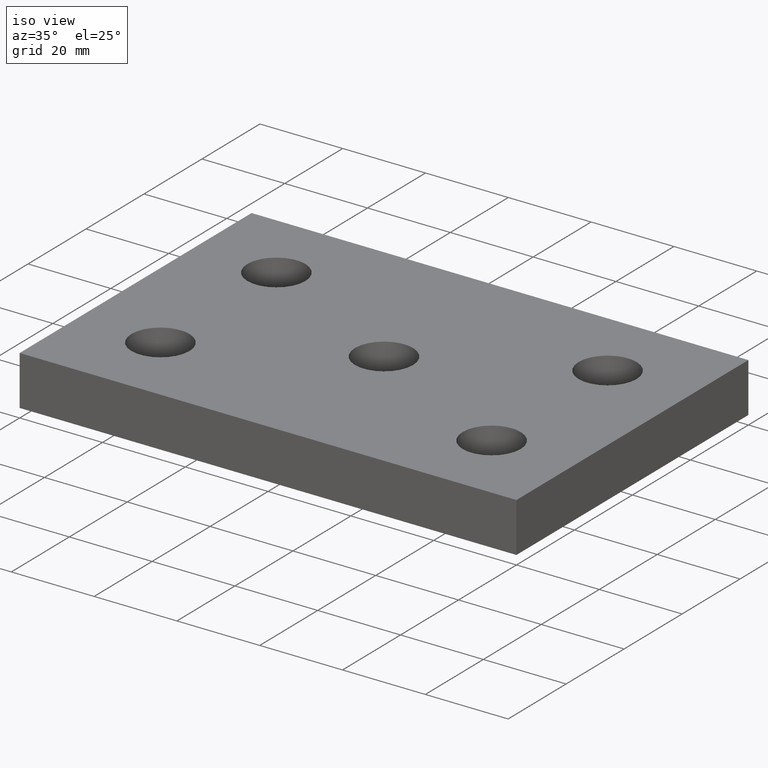
[diagram: clean part render]
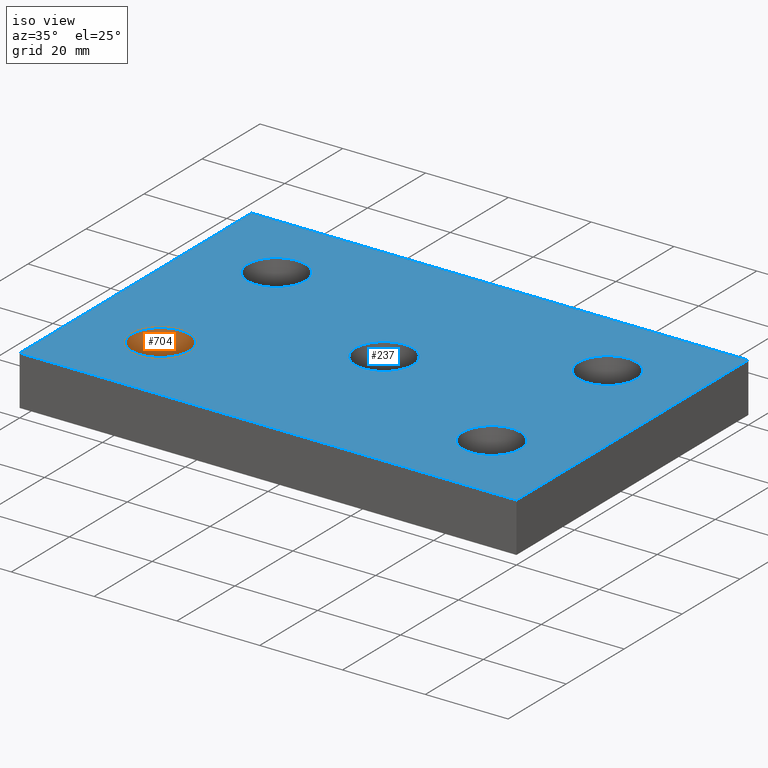
[diagram: same view with the hole feature highlighted: cylindrical wall and planar end face, labeled with their STEP entity ids]
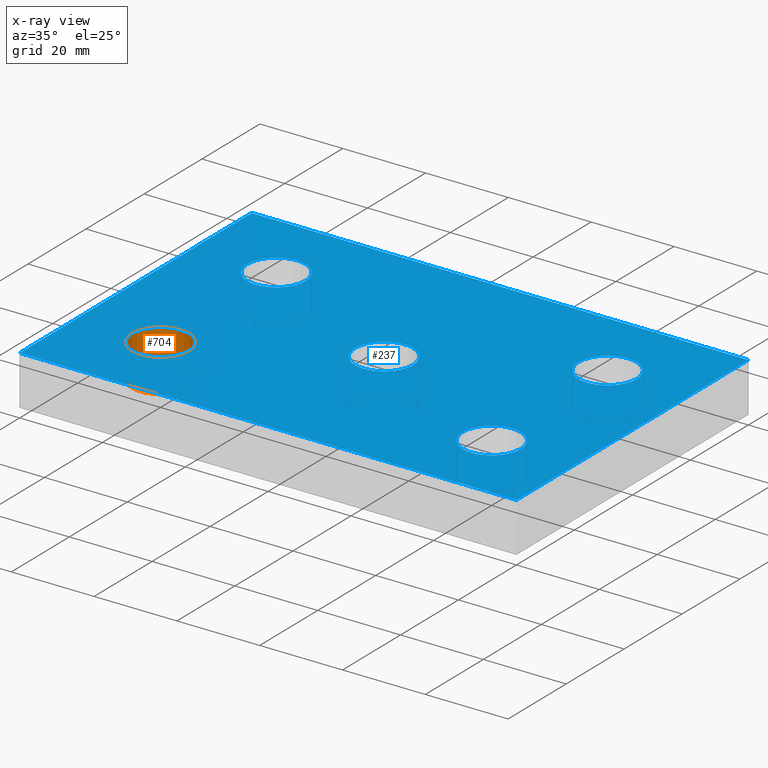
[diagram: x-ray of the same camera — body ghosted, the hole faces saturated]
A machine part, iso view. The highlighted faces form one hole feature of diameter 14 mm: the cylindrical wall (entity #704, orange) and its adjacent planar end face (entity #237, blue) — they share a circular edge in the B-rep.
The next image is the same camera in x-ray (body ghosted, the hole faces saturated) — the bore reads through the body.
Wall:
#217=CARTESIAN_POINT('',(-46.999991119840161,-19.999995559919626,12.0));
#218=VERTEX_POINT('',#217);
#219=CARTESIAN_POINT('',(-32.999991119840161,-19.999995559919626,11.999999999999998));
#220=VERTEX_POINT('',#219);
#221=CARTESIAN_POINT('',(-39.999991119840161,-19.999995559919626,12.0));
#222=DIRECTION('',(0.0,6.123234E-017,1.0));
#223=DIRECTION('',(1.0,0.0,0.0));
#224=AXIS2_PLACEMENT_3D('',#221,#222,#223);
#225=CIRCLE('',#224,7.0);
#226=EDGE_CURVE('',#218,#220,#225,.T.);
#228=CARTESIAN_POINT('',(-39.999991119840161,-19.999995559919626,12.0));
#229=DIRECTION('',(0.0,6.123234E-017,1.0));
#230=DIRECTION('',(1.0,0.0,0.0));
#231=AXIS2_PLACEMENT_3D('',#228,#229,#230);
#232=CIRCLE('',#231,7.0);
#233=EDGE_CURVE('',#220,#218,#232,.T.);
#661=CARTESIAN_POINT('',(-32.999991119840161,-19.999995559919626,4.0));
#662=VERTEX_POINT('',#661);
#663=CARTESIAN_POINT('',(-46.999991119840161,-19.999995559919626,4.0));
#664=VERTEX_POINT('',#663);
#665=CARTESIAN_POINT('',(-39.999991119840161,-19.999995559919626,4.0));
#666=DIRECTION('',(0.0,6.123234E-017,1.0));
#667=DIRECTION('',(1.0,0.0,0.0));
#668=AXIS2_PLACEMENT_3D('',#665,#666,#667);
#669=CIRCLE('',#668,7.0);
#670=EDGE_CURVE('',#662,#664,#669,.T.);
#672=CARTESIAN_POINT('',(-39.999991119840161,-19.999995559919626,4.0));
#673=DIRECTION('',(0.0,6.123234E-017,1.0));
#674=DIRECTION('',(1.0,0.0,0.0));
#675=AXIS2_PLACEMENT_3D('',#672,#673,#674);
#676=CIRCLE('',#675,7.0);
#677=EDGE_CURVE('',#664,#662,#676,.T.);
#686=CARTESIAN_POINT('',(-39.999991119840161,-19.999995559919626,4.0));
#687=DIRECTION('',(0.0,6.123234E-017,1.0));
#688=DIRECTION('',(1.0,0.0,0.0));
#689=AXIS2_PLACEMENT_3D('',#686,#687,#688);
#690=CYLINDRICAL_SURFACE('',#689,7.0);
#691=CARTESIAN_POINT('',(-32.999991119840161,-19.999995559919626,4.0));
#692=DIRECTION('',(0.0,0.0,1.0));
#693=VECTOR('',#692,7.999999999999998);
#694=LINE('',#691,#693);
#695=EDGE_CURVE('',#662,#220,#694,.T.);
#696=ORIENTED_EDGE('',*,*,#695,.T.);
#697=ORIENTED_EDGE('',*,*,#233,.T.);
#698=ORIENTED_EDGE('',*,*,#226,.T.);
#699=ORIENTED_EDGE('',*,*,#695,.F.);
#700=ORIENTED_EDGE('',*,*,#677,.F.);
#701=ORIENTED_EDGE('',*,*,#670,.F.);
#702=EDGE_LOOP('',(#696,#697,#698,#699,#700,#701));
#703=FACE_OUTER_BOUND('',#702,.T.);
#704=ADVANCED_FACE('',(#703),#690,.F.);
End face:
#7=CARTESIAN_POINT('',(59.999986679760013,-39.999991119839706,12.0));
#8=VERTEX_POINT('',#7);
#25=CARTESIAN_POINT('',(59.999986679760013,39.999991119840161,12.0));
#26=VERTEX_POINT('',#25);
#33=CARTESIAN_POINT('',(59.999986679760013,-39.999991119839706,12.0));
#34=DIRECTION('',(0.0,1.0,0.0));
#35=VECTOR('',#34,79.999982239679866);
#36=LINE('',#33,#35);
#37=EDGE_CURVE('',#8,#26,#36,.T.);
#56=CARTESIAN_POINT('',(-59.999986679760013,39.999991119840161,12.0));
#57=VERTEX_POINT('',#56);
#64=CARTESIAN_POINT('',(59.999986679760013,39.999991119840161,12.0));
#65=DIRECTION('',(-1.0,0.0,0.0));
#66=VECTOR('',#65,119.999973359520030);
#67=LINE('',#64,#66);
#68=EDGE_CURVE('',#26,#57,#67,.T.);
#87=CARTESIAN_POINT('',(-59.999986679760013,-39.999991119839706,12.0));
#88=VERTEX_POINT('',#87);
#95=CARTESIAN_POINT('',(-59.999986679760013,39.999991119840161,12.0));
#96=DIRECTION('',(0.0,-1.0,0.0));
#97=VECTOR('',#96,79.999982239679866);
#98=LINE('',#95,#97);
#99=EDGE_CURVE('',#57,#88,#98,.T.);
#117=CARTESIAN_POINT('',(-59.999986679760013,-39.999991119839706,12.0));
#118=DIRECTION('',(1.0,0.0,0.0));
#119=VECTOR('',#118,119.999973359520030);
#120=LINE('',#117,#119);
#121=EDGE_CURVE('',#88,#8,#120,.T.);
#126=CARTESIAN_POINT('',(-71.999988748835221,-47.999994076735220,12.0));
#127=DIRECTION('',(0.0,0.0,1.0));
#128=DIRECTION('',(1.0,0.0,0.0));
#129=AXIS2_PLACEMENT_3D('',#126,#127,#128);
#130=PLANE('',#129);
#131=ORIENTED_EDGE('',*,*,#37,.T.);
#132=ORIENTED_EDGE('',*,*,#68,.T.);
#133=ORIENTED_EDGE('',*,*,#99,.T.);
#134=ORIENTED_EDGE('',*,*,#121,.T.);
#135=EDGE_LOOP('',(#131,#132,#133,#134));
#136=FACE_OUTER_BOUND('',#135,.T.);
#137=CARTESIAN_POINT('',(-7.0,0.0,12.0));
#138=VERTEX_POINT('',#137);
#139=CARTESIAN_POINT('',(7.0,0.0,12.0));
#140=VERTEX_POINT('',#139);
#141=CARTESIAN_POINT('',(0.0,0.0,12.0));
#142=DIRECTION('',(0.0,0.0,1.0));
#143=DIRECTION('',(1.0,0.0,0.0));
#144=AXIS2_PLACEMENT_3D('',#141,#142,#143);
#145=CIRCLE('',#144,7.0);
#146=EDGE_CURVE('',#138,#140,#145,.T.);
#147=ORIENTED_EDGE('',*,*,#146,.F.);
#148=CARTESIAN_POINT('',(0.0,0.0,12.0));
#149=DIRECTION('',(0.0,0.0,1.0));
#150=DIRECTION('',(1.0,0.0,0.0));
#151=AXIS2_PLACEMENT_3D('',#148,#149,#150);
#152=CIRCLE('',#151,7.0);
#153=EDGE_CURVE('',#140,#138,#152,.T.);
#154=ORIENTED_EDGE('',*,*,#153,.F.);
#155=EDGE_LOOP('',(#147,#154));
#156=FACE_BOUND('',#155,.T.);
#157=CARTESIAN_POINT('',(-46.999991119840161,19.999995559920080,12.0));
#158=VERTEX_POINT('',#157);
#159=CARTESIAN_POINT('',(-32.999991119840161,19.999995559920080,11.999999999999998));
#160=VERTEX_POINT('',#159);
#161=CARTESIAN_POINT('',(-39.999991119840161,19.999995559920080,12.0));
#162=DIRECTION('',(0.0,6.123234E-017,1.0));
#163=DIRECTION('',(1.0,0.0,0.0));
#164=AXIS2_PLACEMENT_3D('',#161,#162,#163);
#165=CIRCLE('',#164,7.0);
#166=EDGE_CURVE('',#158,#160,#165,.T.);
#167=ORIENTED_EDGE('',*,*,#166,.F.);
#168=CARTESIAN_POINT('',(-39.999991119840161,19.999995559920080,12.0));
#169=DIRECTION('',(0.0,6.123234E-017,1.0));
#170=DIRECTION('',(1.0,0.0,0.0));
#171=AXIS2_PLACEMENT_3D('',#168,#169,#170);
#172=CIRCLE('',#171,7.0);
#173=EDGE_CURVE('',#160,#158,#172,.T.);
#174=ORIENTED_EDGE('',*,*,#173,.F.);
#175=EDGE_LOOP('',(#167,#174));
#176=FACE_BOUND('',#175,.T.);
#177=CARTESIAN_POINT('',(32.999991119839933,19.999995559920080,12.0));
#178=VERTEX_POINT('',#177);
#179=CARTESIAN_POINT('',(46.999991119839933,19.999995559920080,11.999999999999998));
#180=VERTEX_POINT('',#179);
#181=CARTESIAN_POINT('',(39.999991119839933,19.999995559920080,12.0));
#182=DIRECTION('',(0.0,6.123234E-017,1.0));
#183=DIRECTION('',(1.0,0.0,0.0));
#184=AXIS2_PLACEMENT_3D('',#181,#182,#183);
#185=CIRCLE('',#184,7.0);
#186=EDGE_CURVE('',#178,#180,#185,.T.);
#187=ORIENTED_EDGE('',*,*,#186,.F.);
#188=CARTESIAN_POINT('',(39.999991119839933,19.999995559920080,12.0));
#189=DIRECTION('',(0.0,6.123234E-017,1.0));
#190=DIRECTION('',(1.0,0.0,0.0));
#191=AXIS2_PLACEMENT_3D('',#188,#189,#190);
#192=CIRCLE('',#191,7.0);
#193=EDGE_CURVE('',#180,#178,#192,.T.);
#194=ORIENTED_EDGE('',*,*,#193,.F.);
#195=EDGE_LOOP('',(#187,#194));
#196=FACE_BOUND('',#195,.T.);
#197=CARTESIAN_POINT('',(32.999991119839933,-19.999995559919626,12.0));
#198=VERTEX_POINT('',#197);
#199=CARTESIAN_POINT('',(46.999991119839933,-19.999995559919626,11.999999999999998));
#200=VERTEX_POINT('',#199);
#201=CARTESIAN_POINT('',(39.999991119839933,-19.999995559919626,12.0));
#202=DIRECTION('',(0.0,6.123234E-017,1.0));
#203=DIRECTION('',(1.0,0.0,0.0));
#204=AXIS2_PLACEMENT_3D('',#201,#202,#203);
#205=CIRCLE('',#204,7.0);
#206=EDGE_CURVE('',#198,#200,#205,.T.);
#207=ORIENTED_EDGE('',*,*,#206,.F.);
#208=CARTESIAN_POINT('',(39.999991119839933,-19.999995559919626,12.0));
#209=DIRECTION('',(0.0,6.123234E-017,1.0));
#210=DIRECTION('',(1.0,0.0,0.0));
#211=AXIS2_PLACEMENT_3D('',#208,#209,#210);
#212=CIRCLE('',#211,7.0);
#213=EDGE_CURVE('',#200,#198,#212,.T.);
#214=ORIENTED_EDGE('',*,*,#213,.F.);
#215=EDGE_LOOP('',(#207,#214));
#216=FACE_BOUND('',#215,.T.);
#217=CARTESIAN_POINT('',(-46.999991119840161,-19.999995559919626,12.0));
#218=VERTEX_POINT('',#217);
#219=CARTESIAN_POINT('',(-32.999991119840161,-19.999995559919626,11.999999999999998));
#220=VERTEX_POINT('',#219);
#221=CARTESIAN_POINT('',(-39.999991119840161,-19.999995559919626,12.0));
#222=DIRECTION('',(0.0,6.123234E-017,1.0));
#223=DIRECTION('',(1.0,0.0,0.0));
#224=AXIS2_PLACEMENT_3D('',#221,#222,#223);
#225=CIRCLE('',#224,7.0);
#226=EDGE_CURVE('',#218,#220,#225,.T.);
#227=ORIENTED_EDGE('',*,*,#226,.F.);
#228=CARTESIAN_POINT('',(-39.999991119840161,-19.999995559919626,12.0));
#229=DIRECTION('',(0.0,6.123234E-017,1.0));
#230=DIRECTION('',(1.0,0.0,0.0));
#231=AXIS2_PLACEMENT_3D('',#228,#229,#230);
#232=CIRCLE('',#231,7.0);
#233=EDGE_CURVE('',#220,#218,#232,.T.);
#234=ORIENTED_EDGE('',*,*,#233,.F.);
#235=EDGE_LOOP('',(#227,#234));
#236=FACE_BOUND('',#235,.T.);
#237=ADVANCED_FACE('',(#136,#156,#176,#196,#216,#236),#130,.T.);